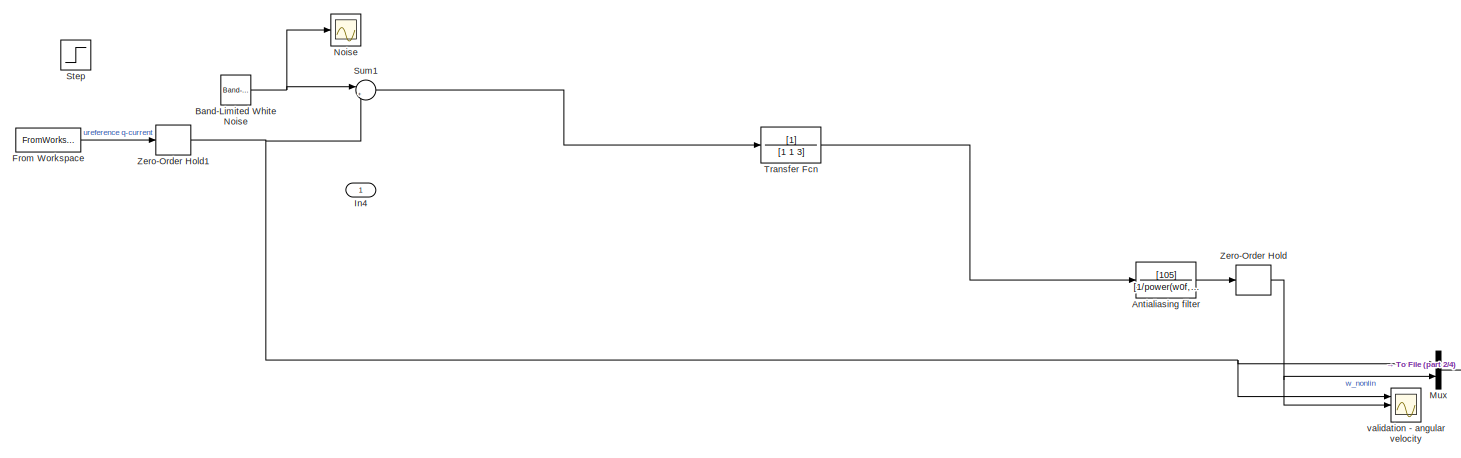
[diagram: root canvas - part 1/4, full width, top band]
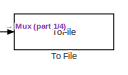
[diagram: root canvas - part 2/4, middle right region]
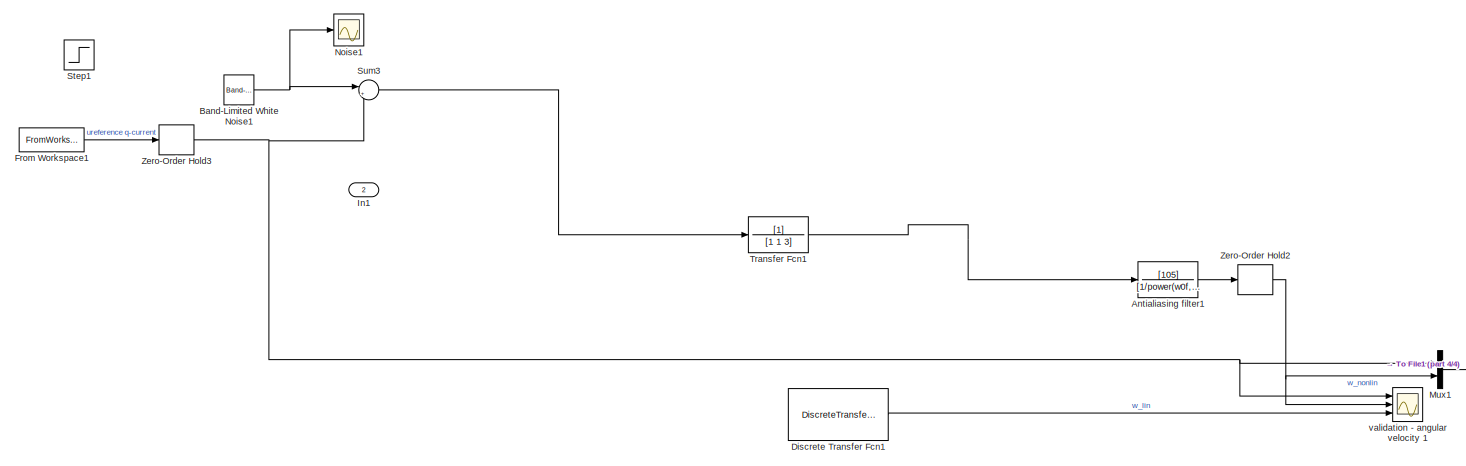
[diagram: root canvas - part 3/4, full width, bottom band]
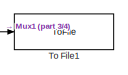
[diagram: root canvas - part 4/4, bottom right region]
MODEL slx_3414fa67a56f
KIND model
CONFIG AbsTol = auto
CONFIG EnableMultiTasking = off
CONFIG FixedStep = auto
CONFIG MaxStep = auto
CONFIG MinStep = auto
CONFIG RelTol = 1e-3
CONFIG SampleTimeConstraint = Unconstrained
CONFIG SolverName = VariableStepAuto
CONFIG StartTime = 0.0
CONFIG StopTime = 30
WORKSPACE source: MATLAB code (in-file)
WORKSPACE np = 4
WORKSPACE phiv = 0.1167
WORKSPACE Kt = 3/2*np*phiv  (= 0.7002)
WORKSPACE f = 7.43e-5  (= 7.43e-05)
WORKSPACE J = 1.74e-4  (= 0.000174)
WORKSPACE L = 0.004
WORKSPACE Ld = L  (= 0.004)
WORKSPACE Lq = L  (= 0.004)
WORKSPACE Rs = 1.74
WORKSPACE Kp = 50
WORKSPACE Ki = 2500
WORKSPACE Ti = Kp/Ki  (= 0.02)
WORKSPACE h = 1e-2  (= 0.01)
WORKSPACE wN = pi/h  (= 314.159265359)
WORKSPACE wBf = 0.7*wN  (= 219.911485751)
WORKSPACE w0f = wBf/2.11  (= 104.223452963)
BLOCK [TransferFcn] Antialiasing filter
  Denominator = [1/power(w0f,4), 10/power(w0f, 3), 45/power(w0f, 2), 105/w0f, 105]
  Numerator = [105]
BLOCK [TransferFcn] Antialiasing filter1
  Denominator = [1/power(w0f,4), 10/power(w0f, 3), 45/power(w0f, 2), 105/w0f, 105]
  Numerator = [105]
BLOCK [Reference] Band-Limited White Noise  REF=simulink/Sources/Band-Limited
White Noise
  Ports = [0, 1]
  SourceBlock = simulink/Sources/Band-Limited\nWhite Noise
  SourceProductBaseCode = SL
  SourceType = Band-Limited White Noise.
BLOCK [Reference] Band-Limited White Noise1  REF=simulink/Sources/Band-Limited
White Noise
  Ports = [0, 1]
  SourceBlock = simulink/Sources/Band-Limited\nWhite Noise
  SourceProductBaseCode = SL
  SourceType = Band-Limited White Noise.
BLOCK [DiscreteTransferFcn] Discrete Transfer Fcn1
  Commented = on
  Denominator = den{1}
  InputPortMap = u0
  Numerator = num{1}
  Ports = [1, 1]
  SampleTime = h
BLOCK [FromWorkspace] From Workspace
  SampleTime = h
  VariableName = input1v
BLOCK [FromWorkspace] From Workspace1
  SampleTime = h
  VariableName = input1
BLOCK [Inport] In1
  Port = 2
BLOCK [Inport] In4
BLOCK [Mux] Mux
  DisplayOption = bar
  Inputs = 2
  Ports = [2, 1]
BLOCK [Mux] Mux1
  DisplayOption = bar
  Inputs = 2
  Ports = [2, 1]
BLOCK [Scope] Noise
  Floating = off
  NumInputPorts = 1
  Ports = [1]
  ScopeSpecificationString = Simulink.scopes.TimeScopeBlockCfg('CurrentConfiguration', extmgr.ConfigurationSet(extmgr.Configuration('Core','General UI',true),extmgr.Configuration('Core','Source UI',true),extmgr.Configuration('Sources','WiredSimulink',true,'DataLoggingVariableName','ScopeData1'),extmgr.Configuration('Visuals','Time Domain',true,'SerializedDisplays',{struct('MinYLimReal','-20.39671','MaxYLimReal','15.99983','YL...<+1470ch>
BLOCK [Scope] Noise1
  Floating = off
  NumInputPorts = 1
  Ports = [1]
  ScopeSpecificationString = Simulink.scopes.TimeScopeBlockCfg('CurrentConfiguration', extmgr.ConfigurationSet(extmgr.Configuration('Core','General UI',true),extmgr.Configuration('Core','Source UI',true),extmgr.Configuration('Sources','WiredSimulink',true,'DataLoggingVariableName','ScopeData4'),extmgr.Configuration('Visuals','Time Domain',true,'SerializedDisplays',{struct('MinYLimReal','-16.11352','MaxYLimReal','17.37544','YL...<+1472ch>
BLOCK [Step] Step
  After = 6
  SampleTime = 0
BLOCK [Step] Step1
  After = 6
  SampleTime = 0
BLOCK [Sum] Sum1
  Inputs = |++
  Ports = [2, 1]
BLOCK [Sum] Sum3
  Inputs = |++
  Ports = [2, 1]
BLOCK [ToFile] To File
  Filename = pmsm_sysid_val_sim.mat
  MatrixName = uy
  Ports = [1]
  SampleTime = h
  SaveFormat = Timeseries
BLOCK [ToFile] To File1
  Filename = pmsm_sysid_sim.mat
  MatrixName = uy
  Ports = [1]
  SampleTime = h
  SaveFormat = Timeseries
BLOCK [TransferFcn] Transfer Fcn
  Denominator = [1 1 3]
BLOCK [TransferFcn] Transfer Fcn1
  Denominator = [1 1 3]
BLOCK [ZeroOrderHold] Zero-Order Hold
  SampleTime = h
BLOCK [ZeroOrderHold] Zero-Order Hold1
  SampleTime = h
BLOCK [ZeroOrderHold] Zero-Order Hold2
  SampleTime = h
BLOCK [ZeroOrderHold] Zero-Order Hold3
  SampleTime = h
BLOCK [Scope] validation - angular velocity 
  Floating = off
  NumInputPorts = 3
  Ports = [3]
  ScopeSpecificationString = Simulink.scopes.TimeScopeBlockCfg('CurrentConfiguration', extmgr.ConfigurationSet(extmgr.Configuration('Core','General UI',true),extmgr.Configuration('Core','Source UI',true),extmgr.Configuration('Sources','WiredSimulink',true,'DataLoggingVariableName','ScopeData1'),extmgr.Configuration('Visuals','Time Domain',true,'SerializedDisplays',{struct('MinYLimReal','-10.00000','MaxYLimReal','10.00000','YL...<+2573ch>
BLOCK [Scope] validation - angular velocity 1
  Floating = off
  NumInputPorts = 3
  Ports = [3]
  ScopeSpecificationString = Simulink.scopes.TimeScopeBlockCfg('CurrentConfiguration', extmgr.ConfigurationSet(extmgr.Configuration('Core','General UI',true),extmgr.Configuration('Core','Source UI',true),extmgr.Configuration('Sources','WiredSimulink',true,'DataLoggingVariableName','ScopeData5'),extmgr.Configuration('Visuals','Time Domain',true,'SerializedDisplays',{struct('MinYLimReal','-10.00000','MaxYLimReal','10.00000','YL...<+2581ch>
LINE Antialiasing filter1:1 -> Zero-Order Hold2:1
LINE Antialiasing filter:1 -> Zero-Order Hold:1
NET Band-Limited White Noise1:1 -> Noise1:1, Sum3:1
NET Band-Limited White Noise:1 -> Noise:1, Sum1:1
LINE Discrete Transfer Fcn1:1 -> validation - angular velocity 1:3
LINE From Workspace1:1 -> Zero-Order Hold3:1
LINE From Workspace:1 -> Zero-Order Hold1:1
LINE Mux1:1 -> To File1:1
LINE Mux:1 -> To File:1
LINE Sum1:1 -> Transfer Fcn:1
LINE Sum3:1 -> Transfer Fcn1:1
LINE Transfer Fcn1:1 -> Antialiasing filter1:1
LINE Transfer Fcn:1 -> Antialiasing filter:1
NET Zero-Order Hold1:1 -> Mux:1, Sum1:2, validation - angular velocity :1
NET Zero-Order Hold2:1 -> Mux1:2, validation - angular velocity 1:2
NET Zero-Order Hold3:1 -> Mux1:1, Sum3:2, validation - angular velocity 1:1
NET Zero-Order Hold:1 -> Mux:2, validation - angular velocity :2
note: NET lines group one-source signal fan-out (src -> all destinations, sorted); 1:1 wires keep LINE
